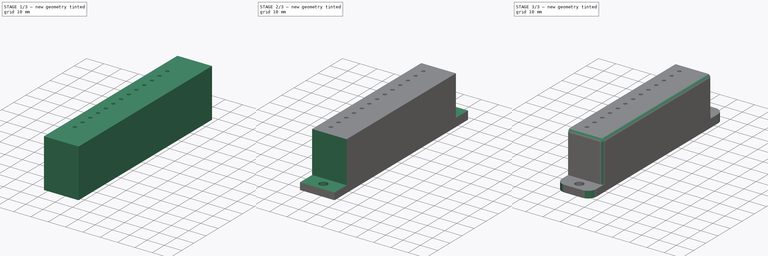
[diagram: build sequence overview — one tinted view per stage of 3, left to right]
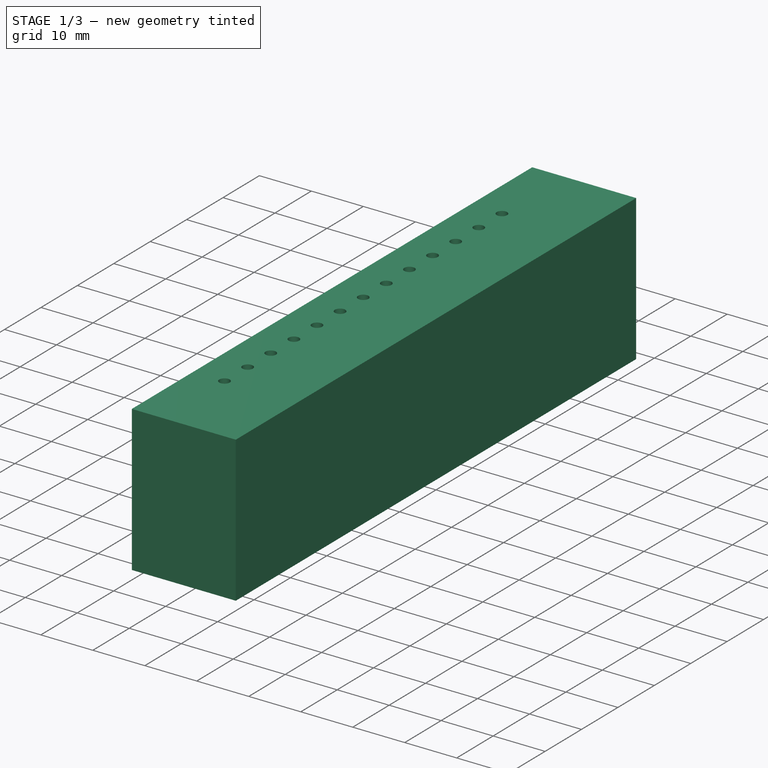
[diagram: stage 1 of 3 — iso view after this stage's code; geometry added in this stage tinted green]
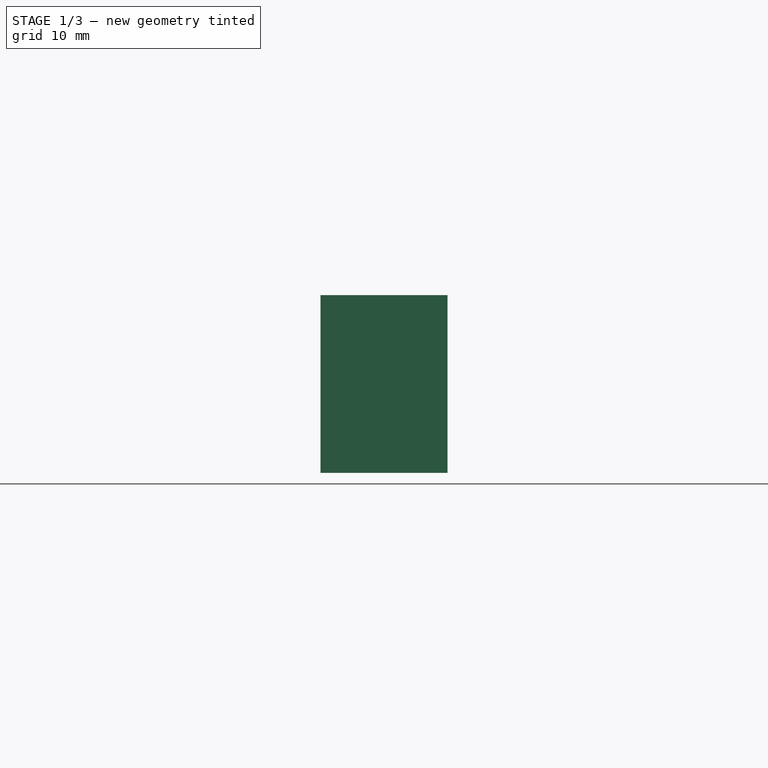
[diagram: stage 1 of 3 — front view after this stage's code; geometry added in this stage tinted green]
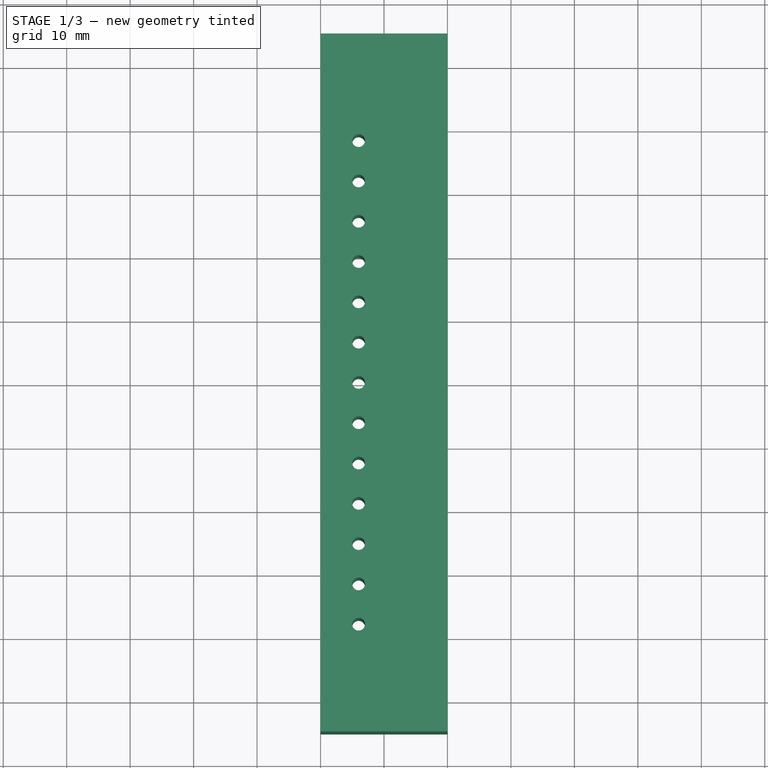
[diagram: stage 1 of 3 — top view after this stage's code; geometry added in this stage tinted green]
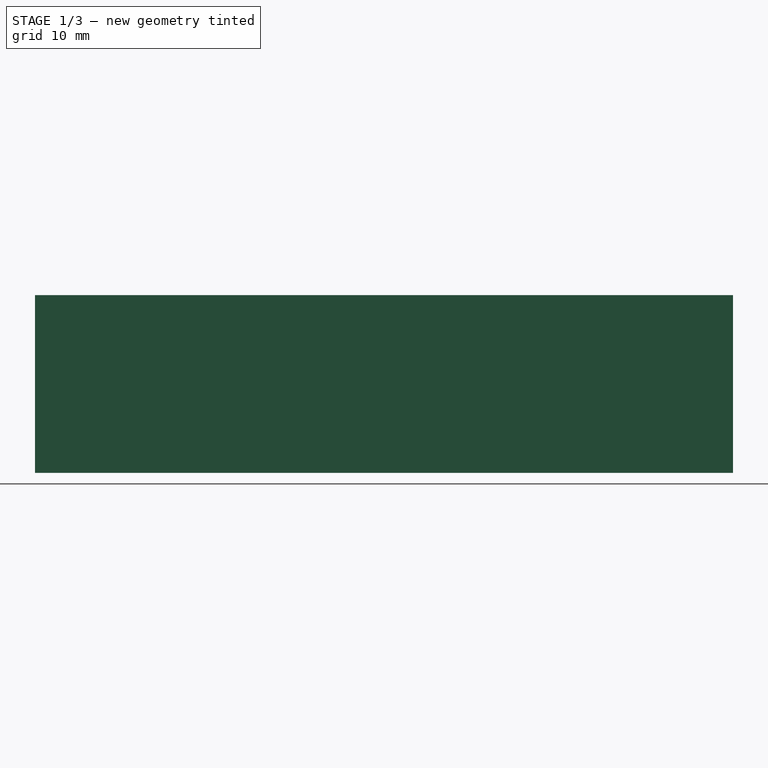
[diagram: stage 1 of 3 — right view after this stage's code; geometry added in this stage tinted green]
FCSTD DOCUMENT  (FreeCAD 0.16R6698 (Git))
Label: pnp barrier mount
License: All rights reserved
LicenseURL: http://en.wikipedia.org/wiki/All_rights_reserved
objects: Sketcher::SketchObject×5, PartDesign::Pocket×4, PartDesign::Fillet×2, PartDesign::Pad×1
note: 17 computed .brp shape members not serialized (recipe doc carries the construction recipe); baked Part::Feature solids carry a one-line shape summary decoded from their .brp

FEATURE [Sketcher::SketchObject] Sketch
  sketch-geometry (4):
    g0: LineSegment StartX=-10 StartY=55 StartZ=0 EndX=10 EndY=55 EndZ=0
    g1: LineSegment StartX=10 StartY=55 StartZ=0 EndX=10 EndY=-55 EndZ=0
    g2: LineSegment StartX=10 StartY=-55 StartZ=0 EndX=-10 EndY=-55 EndZ=0
    g3: LineSegment StartX=-10 StartY=-55 StartZ=0 EndX=-10 EndY=55 EndZ=0
  constraints (12):
    c: Coincident(g0,g1)
    c: Coincident(g1,g2)
    c: Coincident(g2,g3)
    c: Coincident(g3,g0)
    c: Horizontal(g0)
    c: Horizontal(g2)
    c: Vertical(g1)
    c: Vertical(g3)
    c: Symmetric(g0,g0,g-2)
    c: Symmetric(g0,g2,g-1)
    c: DistanceY(g3,g3) = 110
    c: DistanceX(g0,g0) = 20
FEATURE [PartDesign::Pad] Pad
  Length = 28
  Length2 = 100
  Sketch = -> Sketch
  Type = 0
FEATURE [Sketcher::SketchObject] Sketch003
  Placement = pos=(0,0,0) rot=(1,0,0;3.14159rad)
  Support = -> Pad [Face5]
  sketch-geometry (14):
    g0: Circle CenterX=-4 CenterY=-0.00411718 CenterZ=0 NormalX=0 NormalY=0 NormalZ=1 Radius=1
    g1: Circle CenterX=-4 CenterY=6.34651 CenterZ=0 NormalX=0 NormalY=0 NormalZ=1 Radius=1
    g2: Circle CenterX=-4 CenterY=12.6971 CenterZ=0 NormalX=0 NormalY=0 NormalZ=1 Radius=1
    g3: Circle CenterX=-4 CenterY=-6.35475 CenterZ=0 NormalX=0 NormalY=0 NormalZ=1 Radius=1
    g4: Circle CenterX=-4 CenterY=19.0478 CenterZ=0 NormalX=0 NormalY=0 NormalZ=1 Radius=1
    g5: Circle CenterX=-4 CenterY=25.3984 CenterZ=0 NormalX=0 NormalY=0 NormalZ=1 Radius=1
    g6: Circle CenterX=-4 CenterY=31.749 CenterZ=0 NormalX=0 NormalY=0 NormalZ=1 Radius=1
    g7: Circle CenterX=-4 CenterY=38.0997 CenterZ=0 NormalX=0 NormalY=0 NormalZ=1 Radius=1
    g8: Circle CenterX=-4 CenterY=-38.1079 CenterZ=0 NormalX=0 NormalY=0 NormalZ=1 Radius=1
    g9: Circle CenterX=-4 CenterY=-12.7054 CenterZ=0 NormalX=0 NormalY=0 NormalZ=1 Radius=1
    g10: Circle CenterX=-4 CenterY=-19.056 CenterZ=0 NormalX=0 NormalY=0 NormalZ=1 Radius=1
    g11: Circle CenterX=-4 CenterY=-25.4066 CenterZ=0 NormalX=0 NormalY=0 NormalZ=1 Radius=1
    g12: Circle CenterX=-4 CenterY=-31.7573 CenterZ=0 NormalX=0 NormalY=0 NormalZ=1 Radius=1
    g13: LineSegment [constr] StartX=-4 StartY=42.9811 StartZ=0 EndX=-4 EndY=-42.8776 EndZ=0
  constraints (25):
    c: Radius(g7) = 1
    c: Equal(g7,g6)
    c: Equal(g7,g5)
    c: Equal(g7,g4)
    c: Equal(g7,g2)
    c: Equal(g7,g1)
    c: Equal(g7,g0)
    c: Equal(g7,g3)
    c: Equal(g7, g9-g12) x4
    c: Equal(g7,g8)
    c: PointOnObject(g8,g13)
    c: PointOnObject(g12,g13)
    c: PointOnObject(g11,g13)
    c: PointOnObject(g10,g13)
    c: PointOnObject(g9,g13)
    c: PointOnObject(g3,g13)
    c: PointOnObject(g0,g13)
    c: PointOnObject(g1,g13)
    c: PointOnObject(g2,g13)
    c: PointOnObject(g4,g13)
    c: PointOnObject(g5,g13)
    c: PointOnObject(g6,g13)
    c: PointOnObject(g7,g13)
    c: DistanceX(g13,g-1) = 4
    c: DistanceX(g13,g-1) = 4
FEATURE [PartDesign::Pocket] Pocket
  Length = 5
  Sketch = -> Sketch003
  Type = 1
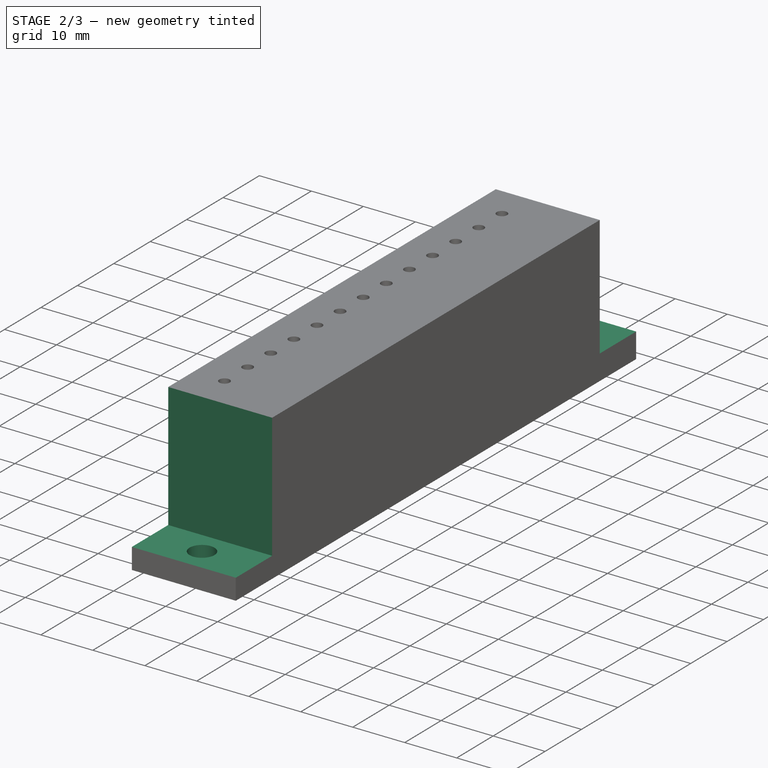
[diagram: stage 2 of 3 — iso view after this stage's code; geometry added in this stage tinted green]
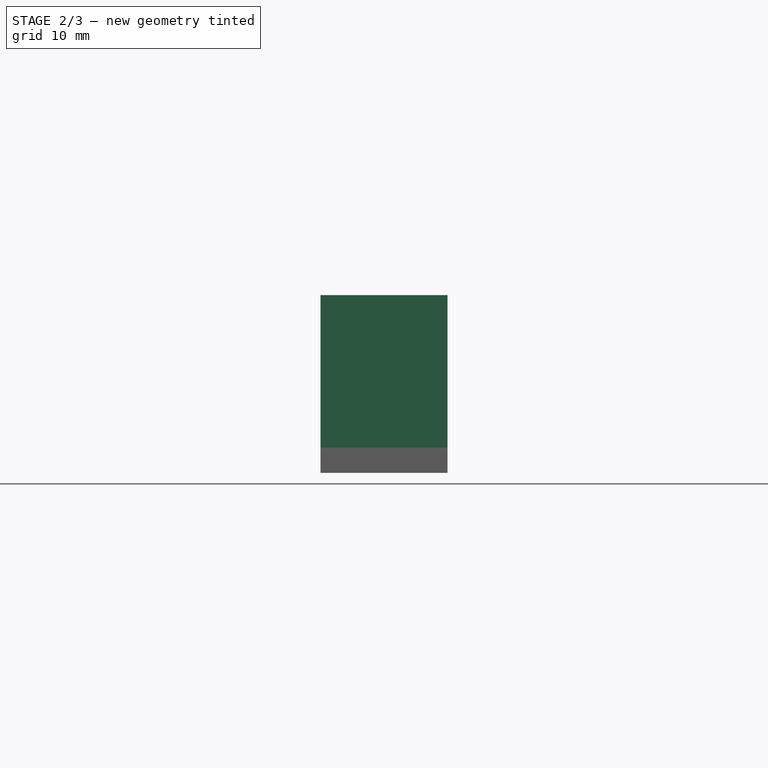
[diagram: stage 2 of 3 — front view after this stage's code; geometry added in this stage tinted green]
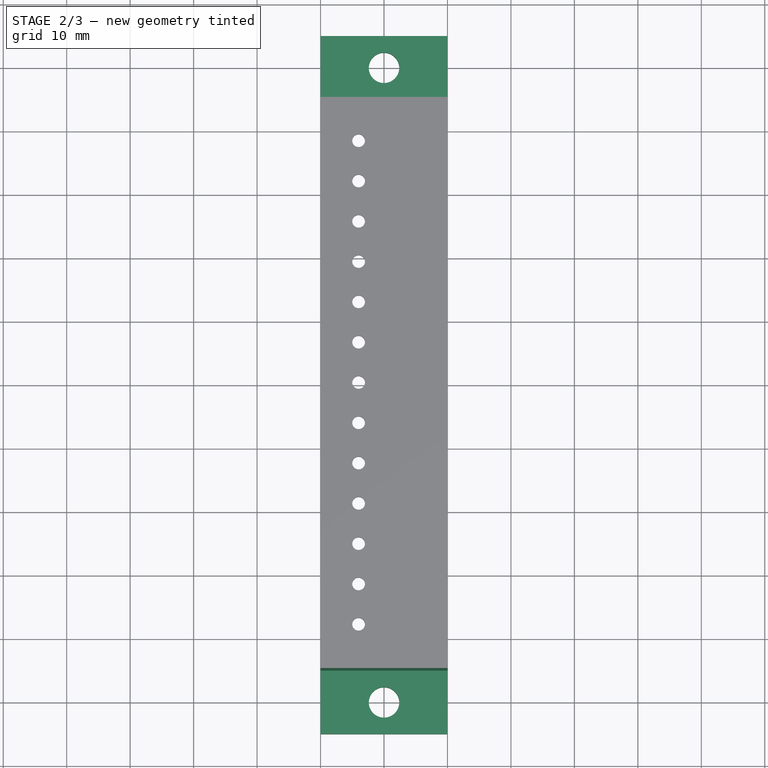
[diagram: stage 2 of 3 — top view after this stage's code; geometry added in this stage tinted green]
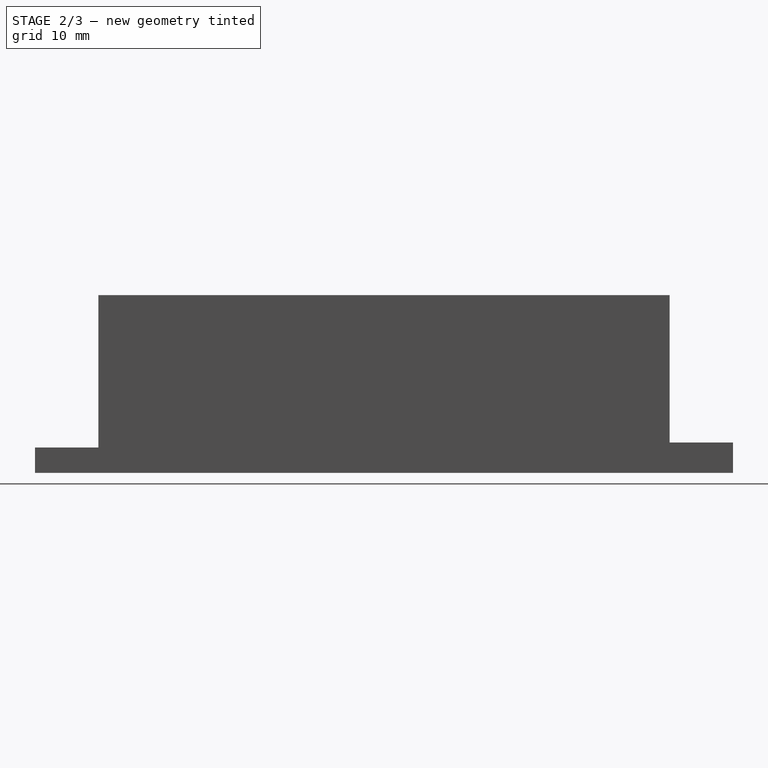
[diagram: stage 2 of 3 — right view after this stage's code; geometry added in this stage tinted green]
FEATURE [Sketcher::SketchObject] Sketch004
  Placement = pos=(10,0,0) rot=(0.57735,0.57735,0.57735;2.0944rad)
  Support = -> Pocket [Face3]
  sketch-geometry (8):
    g0: LineSegment StartX=-59 StartY=29 StartZ=0 EndX=-45 EndY=29 EndZ=0
    g1: LineSegment StartX=-45 StartY=29 StartZ=0 EndX=-45 EndY=4 EndZ=0
    g2: LineSegment StartX=-45 StartY=4 StartZ=0 EndX=-59 EndY=4 EndZ=0
    g3: LineSegment StartX=-59 StartY=4 StartZ=0 EndX=-59 EndY=29 EndZ=0
    g4: LineSegment StartX=45 StartY=29 StartZ=0 EndX=57.7171 EndY=29 EndZ=0
    g5: LineSegment StartX=57.7171 StartY=29 StartZ=0 EndX=57.7171 EndY=4.78868 EndZ=0
    g6: LineSegment StartX=57.7171 StartY=4.78868 StartZ=0 EndX=45 EndY=4.78868 EndZ=0
    g7: LineSegment StartX=45 StartY=4.78868 StartZ=0 EndX=45 EndY=29 EndZ=0
  constraints (16):
    c: Coincident(g0,g1)
    c: Coincident(g1,g2)
    c: Coincident(g2,g3)
    c: Coincident(g3,g0)
    c: Horizontal(g0)
    c: Horizontal(g2)
    c: Vertical(g1)
    c: Vertical(g3)
    c: Coincident(g4,g5)
    c: Coincident(g5,g6)
    c: Coincident(g6,g7)
    c: Coincident(g7,g4)
    c: Horizontal(g4)
    c: Horizontal(g6)
    c: Vertical(g5)
    c: Vertical(g7)
FEATURE [PartDesign::Pocket] Pocket001
  Length = 5
  Sketch = -> Sketch004
  Type = 1
FEATURE [Sketcher::SketchObject] Sketch005
  Placement = pos=(-10,0,0) rot=(0.57735,-0.57735,-0.57735;2.0944rad)
  Support = -> Pocket001 [Face5]
  sketch-geometry (4):
    g0: LineSegment StartX=-41 StartY=-1 StartZ=0 EndX=41 EndY=-1 EndZ=0
    g1: LineSegment StartX=41 StartY=-1 StartZ=0 EndX=41 EndY=25 EndZ=0
    g2: LineSegment StartX=41 StartY=25 StartZ=0 EndX=-41 EndY=25 EndZ=0
    g3: LineSegment StartX=-41 StartY=25 StartZ=0 EndX=-41 EndY=-1 EndZ=0
  constraints (8):
    c: Coincident(g0,g1)
    c: Coincident(g1,g2)
    c: Coincident(g2,g3)
    c: Coincident(g3,g0)
    c: Horizontal(g0)
    c: Horizontal(g2)
    c: Vertical(g1)
    c: Vertical(g3)
FEATURE [PartDesign::Pocket] Pocket002
  Length = 17
  Sketch = -> Sketch005
  Type = 0
FEATURE [Sketcher::SketchObject] Sketch006
  Placement = pos=(0,0,4.78868) rot=(0,0,1;0rad)
  Support = -> Pocket002 [Face4]
  sketch-geometry (2):
    g0: Circle CenterX=0 CenterY=50 CenterZ=0 NormalX=0 NormalY=0 NormalZ=1 Radius=2.4
    g1: Circle CenterX=0 CenterY=-50 CenterZ=0 NormalX=0 NormalY=0 NormalZ=1 Radius=2.4
  constraints (4):
    c: PointOnObject(g0,g-2)
    c: PointOnObject(g1,g-2)
    c: Radius(g1) = 2.4
    c: Equal(g1,g0)
FEATURE [PartDesign::Pocket] Pocket003
  Length = 5
  Sketch = -> Sketch006
  Type = 0
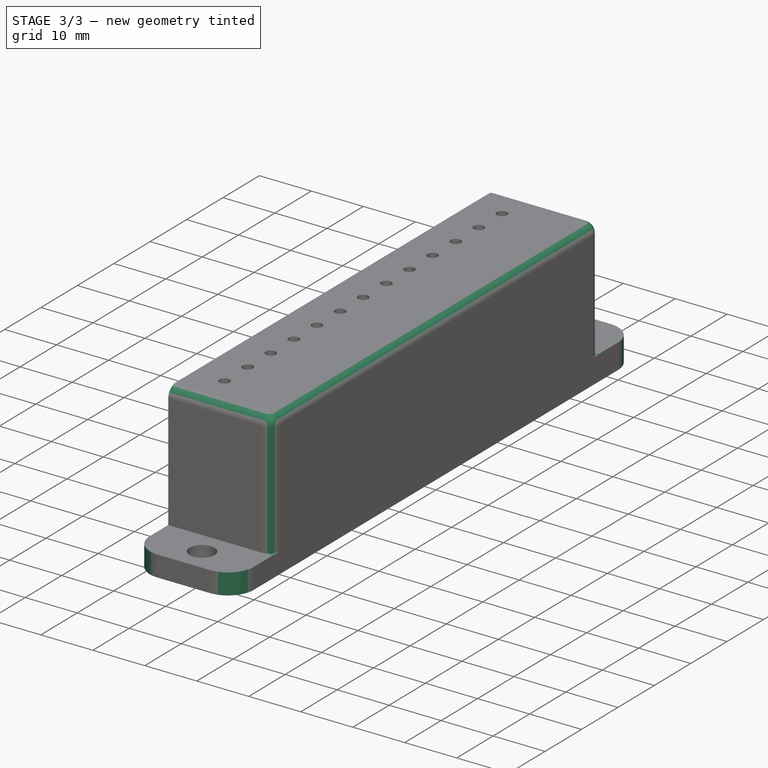
[diagram: stage 3 of 3 — iso view after this stage's code; geometry added in this stage tinted green]
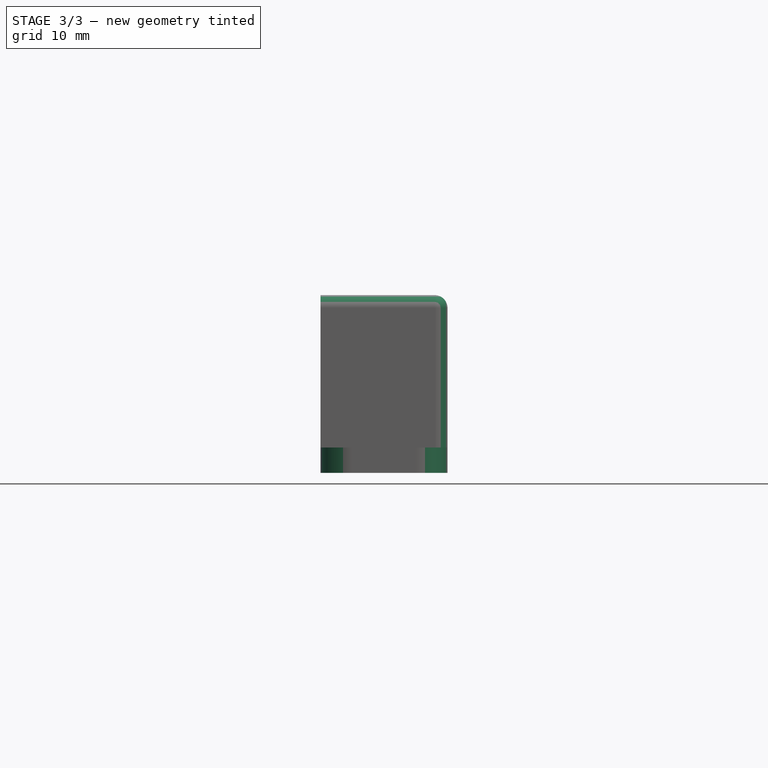
[diagram: stage 3 of 3 — front view after this stage's code; geometry added in this stage tinted green]
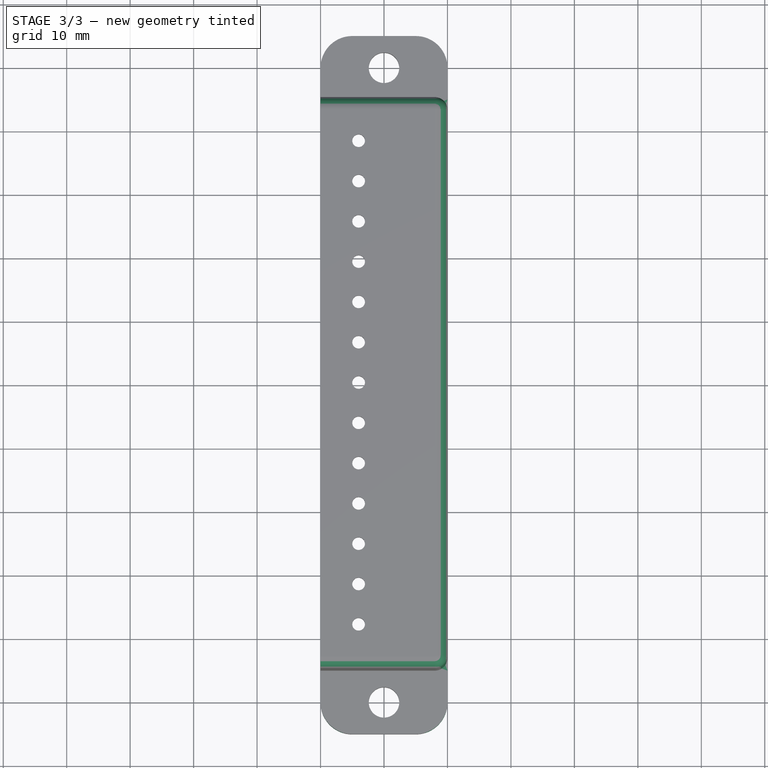
[diagram: stage 3 of 3 — top view after this stage's code; geometry added in this stage tinted green]
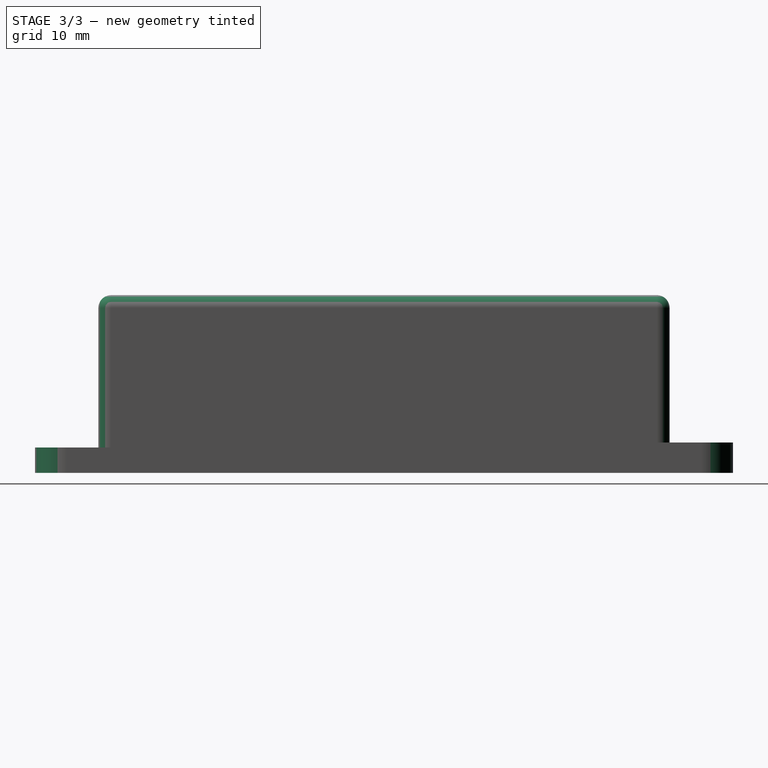
[diagram: stage 3 of 3 — right view after this stage's code; geometry added in this stage tinted green]
FEATURE [PartDesign::Fillet] Fillet
  Base = -> Pocket003 [Edge16,Edge17,Edge18,Edge42,Edge41]
  Radius = 2
FEATURE [PartDesign::Fillet] Fillet001
  Base = -> Fillet [Edge8,Edge35,Edge19,Edge4]
  Radius = 5
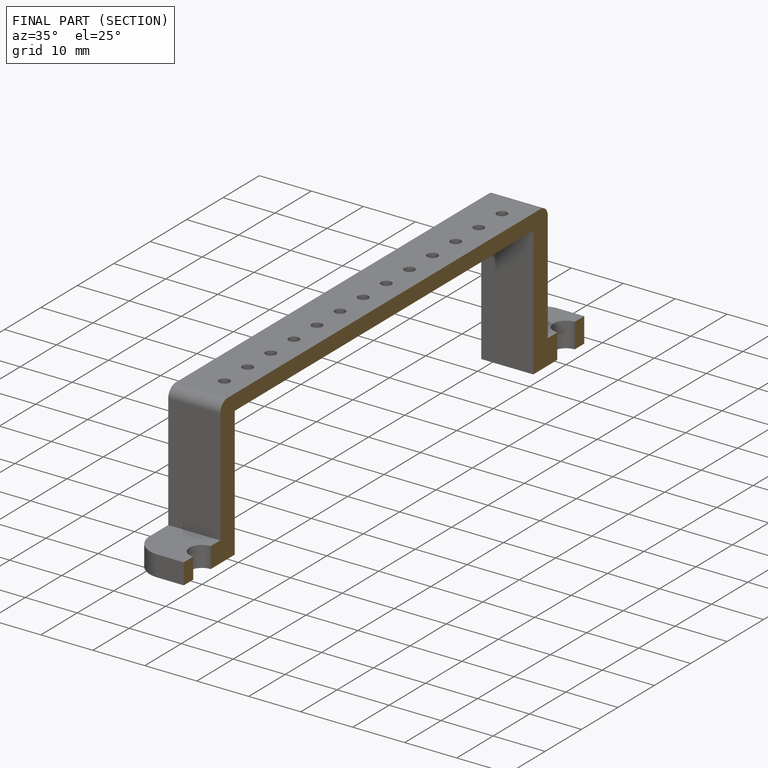
[diagram: finished part — half-section view (interior)]
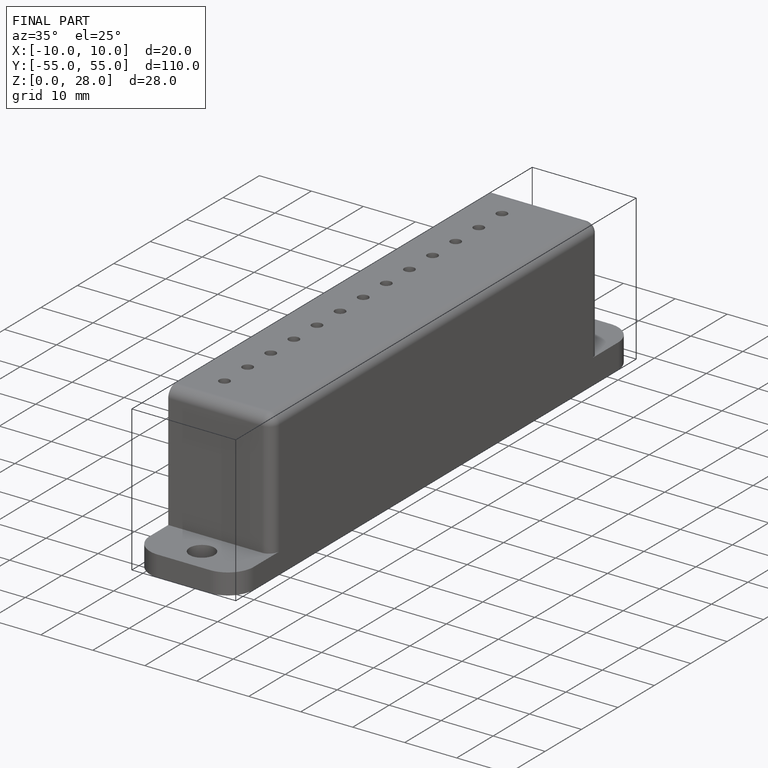
[diagram: finished part — iso view with bounding-box wireframe]
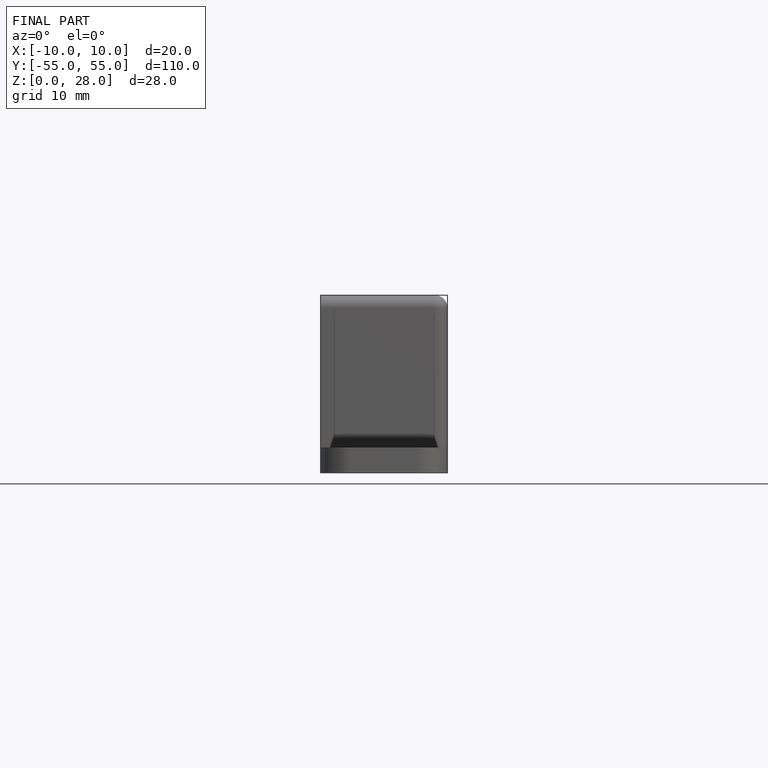
[diagram: finished part — front view with bounding-box wireframe]
